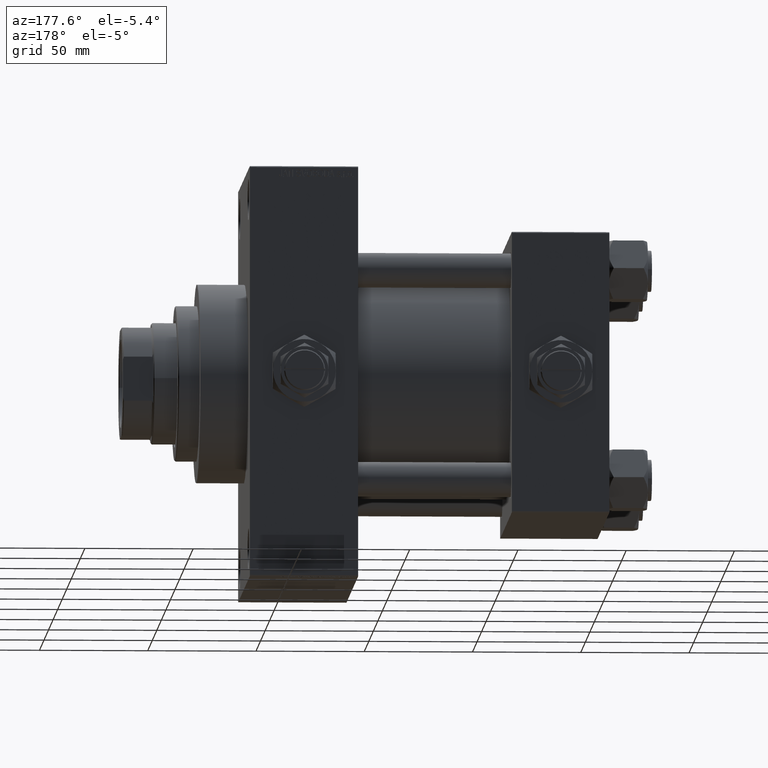
[diagram: clean part render]
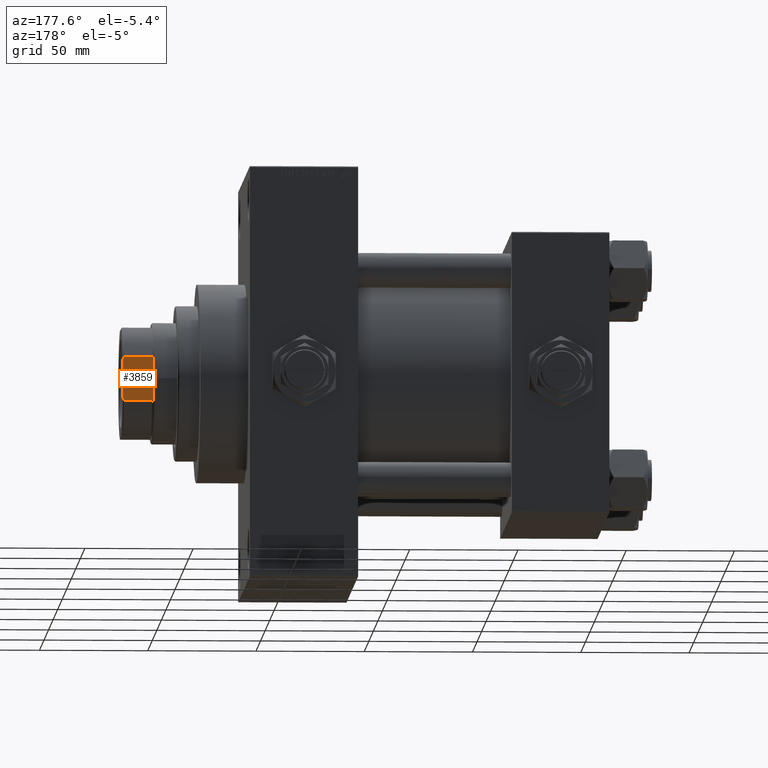
[diagram: same view with one face highlighted and labeled with its STEP entity id]
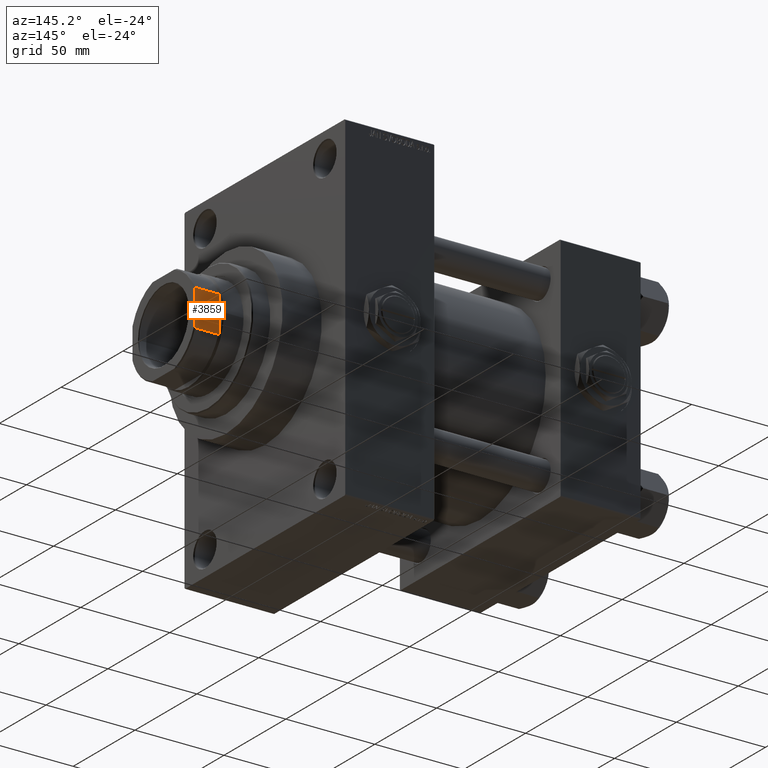
[diagram: same view with one face highlighted and labeled with its STEP entity id]
A machine part, auxiliary view. The second image highlights one B-rep face of the part: STEP entity #3859.
A second angle (auxiliary view) of the same face is appended — the face is thin or edge-on in the first view.
In plain terms, the highlighted planar face has unit normal (0, -1, -0).
Its self-contained STEP definition (entity closure, byte-faithful):
#311 = EDGE_CURVE ( 'NONE', #29381, #27768, #20173, .T. ) ;
#966 = LINE ( 'NONE', #31472, #44910 ) ;
#1485 = VERTEX_POINT ( 'NONE', #4001 ) ;
#2640 = LINE ( 'NONE', #33899, #7201 ) ;
#2860 = CARTESIAN_POINT ( 'NONE',  ( -25.00000000000000000, 25.00000000000000000, 178.0000000000000284 ) ) ;
#3859 = ADVANCED_FACE ( 'NONE', ( #9284 ), #23887, .F. ) ;
#3972 = EDGE_CURVE ( 'NONE', #35147, #1485, #40963, .T. ) ;
#4001 = CARTESIAN_POINT ( 'NONE',  ( -24.99999999999999645, -8.789197915623496726, 178.0000000000000284 ) ) ;
#4255 = VERTEX_POINT ( 'NONE', #26810 ) ;
#4294 = CARTESIAN_POINT ( 'NONE',  ( -25.00000000000000000, 10.19803902718555655, 177.5000000000000000 ) ) ;
#4413 = CARTESIAN_POINT ( 'NONE',  ( -24.99999999999999645, -8.789197915623496726, 178.0000000000000284 ) ) ;
#4642 = B_SPLINE_CURVE_WITH_KNOTS ( 'NONE', 3,
 ( #47600, #5738, #47084, #21113 ),
 .UNSPECIFIED., .F., .F.,
 ( 4, 4 ),
 ( 0.1613657269701884445, 0.1626835971102010281 ),
 .UNSPECIFIED. ) ;
#5576 = ORIENTED_EDGE ( 'NONE', *, *, #311, .T. ) ;
#5738 = CARTESIAN_POINT ( 'NONE',  ( -25.00000000000000000, -11.03952915007668345, 164.1736838211911049 ) ) ;
#5820 = EDGE_CURVE ( 'NONE', #34050, #28433, #44390, .T. ) ;
#7082 = EDGE_CURVE ( 'NONE', #36497, #4255, #4642, .T. ) ;
#7201 = VECTOR ( 'NONE', #29623, 1000.000000000000000 ) ;
#7240 = CARTESIAN_POINT ( 'NONE',  ( -24.99999999999999645, -9.262276112429436381, 177.8430951735361134 ) ) ;
#7465 = EDGE_CURVE ( 'NONE', #4255, #35147, #39196, .T. ) ;
#8202 = ORIENTED_EDGE ( 'NONE', *, *, #5820, .T. ) ;
#9284 = FACE_OUTER_BOUND ( 'NONE', #30436, .T. ) ;
#11570 = CARTESIAN_POINT ( 'NONE',  ( -25.00000000000000000, 11.03923433039705593, 164.1738066424182136 ) ) ;
#11648 = CARTESIAN_POINT ( 'NONE',  ( -24.99999999999999645, 8.789197915623349289, 178.0000000000000284 ) ) ;
#11822 = CARTESIAN_POINT ( 'NONE',  ( -25.00000000000000000, 10.19803902718555122, 164.5000000000000000 ) ) ;
#14413 = ORIENTED_EDGE ( 'NONE', *, *, #20902, .F. ) ;
#15362 = CARTESIAN_POINT ( 'NONE',  ( -25.00000000000000000, 11.45643923738958492, 164.0000000000000000 ) ) ;
#16907 = CARTESIAN_POINT ( 'NONE',  ( -25.00000000000000000, 10.19803902718555122, 164.5000000000000000 ) ) ;
#19410 = EDGE_CURVE ( 'NONE', #29381, #1485, #22284, .T. ) ;
#19946 = CARTESIAN_POINT ( 'NONE',  ( -24.99999999999999645, 9.262276112429335129, 177.8430951735361134 ) ) ;
#20173 = B_SPLINE_CURVE_WITH_KNOTS ( 'NONE', 3,
 ( #11648, #19946, #27249, #4294 ),
 .UNSPECIFIED., .F., .F.,
 ( 4, 4 ),
 ( 0.000000000000000000, 0.001494935877430153244 ),
 .UNSPECIFIED. ) ;
#20595 = CARTESIAN_POINT ( 'NONE',  ( -24.99999999999999645, 8.789197915623349289, 178.0000000000000284 ) ) ;
#20902 = EDGE_CURVE ( 'NONE', #34050, #27768, #2640, .T. ) ;
#21113 = CARTESIAN_POINT ( 'NONE',  ( -25.00000000000000000, -10.19803902718555300, 164.5000000000000000 ) ) ;
#21860 = DIRECTION ( 'NONE',  ( 1.000000000000000000, 1.387778780781445922E-16, -0.000000000000000000 ) ) ;
#22284 = LINE ( 'NONE', #2860, #44939 ) ;
#23887 = PLANE ( 'NONE',  #48690 ) ;
#24914 = ORIENTED_EDGE ( 'NONE', *, *, #7465, .T. ) ;
#26810 = CARTESIAN_POINT ( 'NONE',  ( -25.00000000000000000, -10.19803902718555300, 164.5000000000000000 ) ) ;
#26979 = CARTESIAN_POINT ( 'NONE',  ( -25.00000000000000000, -10.19803902718555300, 177.5000000000000568 ) ) ;
#27249 = CARTESIAN_POINT ( 'NONE',  ( -24.99999999999999645, 9.731776668925968821, 177.6761096935717887 ) ) ;
#27768 = VERTEX_POINT ( 'NONE', #41891 ) ;
#28433 = VERTEX_POINT ( 'NONE', #42459 ) ;
#29087 = DIRECTION ( 'NONE',  ( 1.387778780781445676E-16, -1.000000000000000000, 0.000000000000000000 ) ) ;
#29381 = VERTEX_POINT ( 'NONE', #20595 ) ;
#29623 = DIRECTION ( 'NONE',  ( -0.000000000000000000, -0.000000000000000000, 1.000000000000000000 ) ) ;
#30146 = CARTESIAN_POINT ( 'NONE',  ( -25.00000000000000000, -10.19803902718555300, 177.5000000000000568 ) ) ;
#30436 = EDGE_LOOP ( 'NONE', ( #24914, #43227, #49556, #5576, #14413, #8202, #44482, #34815 ) ) ;
#31472 = CARTESIAN_POINT ( 'NONE',  ( -25.00000000000000000, 25.00000000000000000, 164.0000000000000000 ) ) ;
#33899 = CARTESIAN_POINT ( 'NONE',  ( -25.00000000000000000, 10.19803902718555655, -0.001000000000001000089 ) ) ;
#34050 = VERTEX_POINT ( 'NONE', #16907 ) ;
#34183 = CARTESIAN_POINT ( 'NONE',  ( -25.00000000000000000, -9.731776668926020335, 177.6761096935718456 ) ) ;
#34815 = ORIENTED_EDGE ( 'NONE', *, *, #7082, .T. ) ;
#35147 = VERTEX_POINT ( 'NONE', #26979 ) ;
#35224 = CARTESIAN_POINT ( 'NONE',  ( -25.00000000000000000, 10.61983482933081646, 164.3406855536377691 ) ) ;
#35803 = VECTOR ( 'NONE', #47024, 1000.000000000000000 ) ;
#36497 = VERTEX_POINT ( 'NONE', #41676 ) ;
#39196 = LINE ( 'NONE', #43241, #35803 ) ;
#39257 = CARTESIAN_POINT ( 'NONE',  ( -25.00000000000000000, 25.00000000000000000, 178.0000000000000284 ) ) ;
#40514 = DIRECTION ( 'NONE',  ( -1.387778780781445922E-16, 1.000000000000000000, 0.000000000000000000 ) ) ;
#40963 = B_SPLINE_CURVE_WITH_KNOTS ( 'NONE', 3,
 ( #30146, #34183, #7240, #4413 ),
 .UNSPECIFIED., .F., .F.,
 ( 4, 4 ),
 ( 0.000000000000000000, 0.001494935877429992349 ),
 .UNSPECIFIED. ) ;
#41676 = CARTESIAN_POINT ( 'NONE',  ( -25.00000000000000000, -11.45643923738959025, 164.0000000000000000 ) ) ;
#41891 = CARTESIAN_POINT ( 'NONE',  ( -25.00000000000000000, 10.19803902718555655, 177.5000000000000000 ) ) ;
#42459 = CARTESIAN_POINT ( 'NONE',  ( -25.00000000000000000, 11.45643923738958492, 164.0000000000000000 ) ) ;
#42692 = EDGE_CURVE ( 'NONE', #28433, #36497, #966, .T. ) ;
#43227 = ORIENTED_EDGE ( 'NONE', *, *, #3972, .T. ) ;
#43241 = CARTESIAN_POINT ( 'NONE',  ( -25.00000000000000000, -10.19803902718555300, -0.001000000000001000089 ) ) ;
#44390 = B_SPLINE_CURVE_WITH_KNOTS ( 'NONE', 3,
 ( #11822, #35224, #11570, #15362 ),
 .UNSPECIFIED., .F., .F.,
 ( 4, 4 ),
 ( 0.1347300791724978242, 0.1360693631961248928 ),
 .UNSPECIFIED. ) ;
#44482 = ORIENTED_EDGE ( 'NONE', *, *, #42692, .T. ) ;
#44910 = VECTOR ( 'NONE', #46615, 1000.000000000000000 ) ;
#44939 = VECTOR ( 'NONE', #29087, 1000.000000000000000 ) ;
#46615 = DIRECTION ( 'NONE',  ( 1.387778780781445676E-16, -1.000000000000000000, 0.000000000000000000 ) ) ;
#47024 = DIRECTION ( 'NONE',  ( -0.000000000000000000, -0.000000000000000000, 1.000000000000000000 ) ) ;
#47084 = CARTESIAN_POINT ( 'NONE',  ( -25.00000000000000000, -10.62014219435931039, 164.3405694602838025 ) ) ;
#47600 = CARTESIAN_POINT ( 'NONE',  ( -25.00000000000000000, -11.45643923738959025, 164.0000000000000000 ) ) ;
#48690 = AXIS2_PLACEMENT_3D ( 'NONE', #39257, #21860, #40514 ) ;
#49556 = ORIENTED_EDGE ( 'NONE', *, *, #19410, .F. ) ;